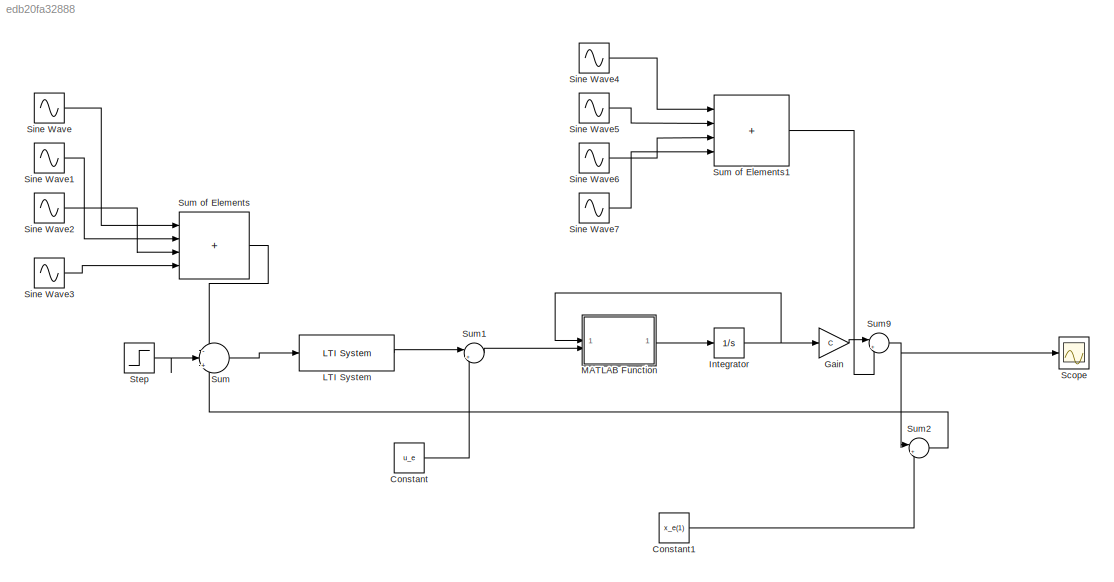
MODEL slx_edb20fa32888
KIND model
CONFIG AbsTol = auto
CONFIG EnableMultiTasking = off
CONFIG FixedStep = auto
CONFIG MaxStep = auto
CONFIG MinStep = auto
CONFIG RelTol = 1e-3
CONFIG SampleTimeConstraint = Unconstrained
CONFIG SolverName = VariableStepAuto
CONFIG StartTime = 0.0
CONFIG StopTime = 10.0
WORKSPACE source: mxarray member
WORKSPACE u_e = 74050
WORKSPACE x_1e = 0.5
WORKSPACE x_e = [0.5 0]
BLOCK [Constant] Constant
  Value = u_e
BLOCK [Constant] Constant1
  Value = x_e(1)
BLOCK [Gain] Gain
  Gain = C
  Multiplication = Matrix(K*u)
BLOCK [Integrator] Integrator
  InitialCondition = x_e
BLOCK [Reference] LTI System  REF=cstblocks/LTI System
  SourceBlock = cstblocks/LTI System
  SourceType = LTI Block
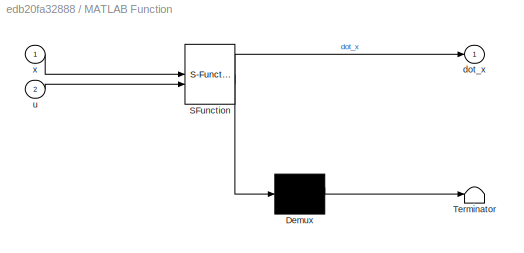
BLOCK [SubSystem] MATLAB Function
  ErrorFcn = Stateflow.Translate.translate
  PermitHierarchicalResolution = ExplicitOnly
  SFBlockType = MATLAB Function
  TreatAsAtomicUnit = on
BLOCK [Demux] MATLAB Function/ Demux 
  Outputs = 1
BLOCK [S-Function] MATLAB Function/ SFunction 
  EnableBusSupport = on
  FunctionName = sf_sfun
  PortCounts = [2 2]
  SFcnIsStateOwnerBlock = off
  SFunctionDeploymentMode = off
  Tag = Stateflow S-Function 2
BLOCK [Terminator] MATLAB Function/ Terminator 
BLOCK [Outport] MATLAB Function/dot_x
BLOCK [Inport] MATLAB Function/u
  Port = 2
BLOCK [Inport] MATLAB Function/x
BLOCK [Scope] Scope
  Floating = off
  NumInputPorts = 1
  ScopeSpecificationString = Simulink.scopes.TimeScopeBlockCfg('CurrentConfiguration', extmgr.ConfigurationSet(extmgr.Configuration('Core','General UI',true,'DisplayFullSourceName',true),extmgr.Configuration('Core','Source UI',true),extmgr.Configuration('Sources','WiredSimulink',true),extmgr.Configuration('Visuals','Time Domain',true,'SerializedDisplays',{struct('MinYLimReal','0.00000','MaxYLimReal','2.7','YLabelReal','','Min...<+1469ch>
BLOCK [Sin] Sine Wave
  Amplitude = 0.2
  Frequency = 5e4
  SampleTime = 0
BLOCK [Sin] Sine Wave1
  Amplitude = 0.2
  Frequency = 5e4*2
  SampleTime = 0
BLOCK [Sin] Sine Wave2
  Amplitude = 0.2
  Frequency = 5e4*3
  SampleTime = 0
BLOCK [Sin] Sine Wave3
  Amplitude = 0.2
  Frequency = 5e4*4
  SampleTime = 0
BLOCK [Sin] Sine Wave4
  Amplitude = 2
  Frequency = 0.125
  SampleTime = 0
BLOCK [Sin] Sine Wave5
  Amplitude = 2
  Frequency = 0.125*2
  SampleTime = 0
BLOCK [Sin] Sine Wave6
  Amplitude = 2
  Frequency = 0.125*3
  SampleTime = 0
BLOCK [Sin] Sine Wave7
  Amplitude = 2
  Frequency = 0.125*4
  SampleTime = 0
BLOCK [Step] Step
  After = WW
  SampleTime = 0.01
BLOCK [Sum] Sum
  Inputs = -|+-
BLOCK [Sum] Sum of Elements
  IconShape = rectangular
  Inputs = ++++
BLOCK [Sum] Sum of Elements1
  IconShape = rectangular
  Inputs = ++++
BLOCK [Sum] Sum1
  Inputs = |++
BLOCK [Sum] Sum2
  Inputs = |+-
BLOCK [Sum] Sum9
  Inputs = |++
LINE Constant1:1 -> Sum2:2
LINE Constant:1 -> Sum1:2
LINE Gain:1 -> Sum9:1
NET Integrator:1 -> Gain:1, MATLAB Function:1
LINE LTI System:1 -> Sum1:1
LINE MATLAB Function:1 -> Integrator:1
LINE Sine Wave1:1 -> Sum of Elements:2
LINE Sine Wave2:1 -> Sum of Elements:3
LINE Sine Wave3:1 -> Sum of Elements:4
LINE Sine Wave4:1 -> Sum of Elements1:1
LINE Sine Wave5:1 -> Sum of Elements1:2
LINE Sine Wave6:1 -> Sum of Elements1:3
LINE Sine Wave7:1 -> Sum of Elements1:4
LINE Sine Wave:1 -> Sum of Elements:1
LINE Step:1 -> Sum:2
LINE Sum of Elements1:1 -> Sum9:2
LINE Sum of Elements:1 -> Sum:1
LINE Sum1:1 -> MATLAB Function:2
LINE Sum2:1 -> Sum:3
NET Sum9:1 -> Scope:1, Sum2:1
LINE Sum:1 -> LTI System:1
note: NET lines group one-source signal fan-out (src -> all destinations, sorted); 1:1 wires keep LINE
CHART MATLAB Function states=1 transitions=1
  STATE_LABEL 'eML_blk_kernel()'
  STATE_LABEL 'SCRIPT:\nfunction dot_x = fcn(x,u)\n\nmm      = 5000; \ngg      = 9.81; \nkk      = 5e4;  \nbb      = 250;  \nbeta    = 0.1;\nn       = 3;\n\n\ndot_x = zeros(2,1);\n\ndot_x(1) = x(2);\n\ndot_x(2) = - gg - bb/mm * x(2) - kk/mm*x(1) - beta/mm * (x(2)^3 +n*x(2)*(sin( n*x(2) ))^2 ) + u/mm ;\n\n\n'
CHART  states=0 transitions=0
